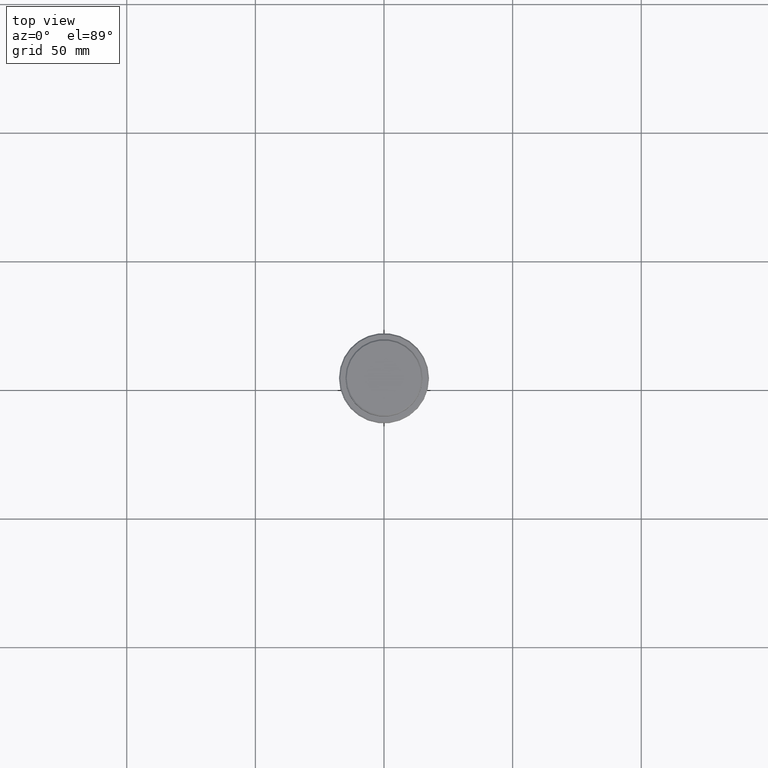
[diagram: clean part render]
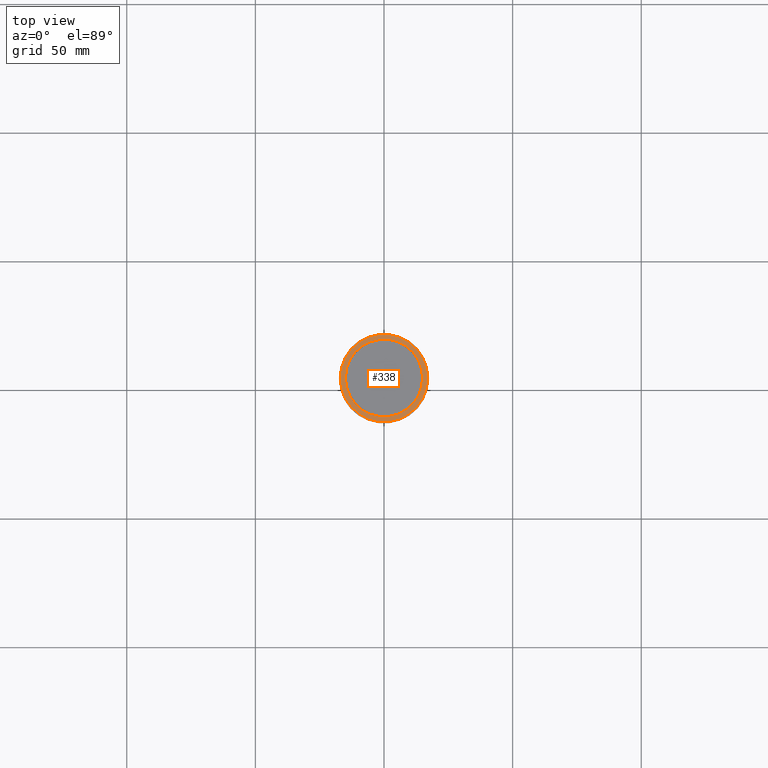
[diagram: same view with one face highlighted and labeled with its STEP entity id]
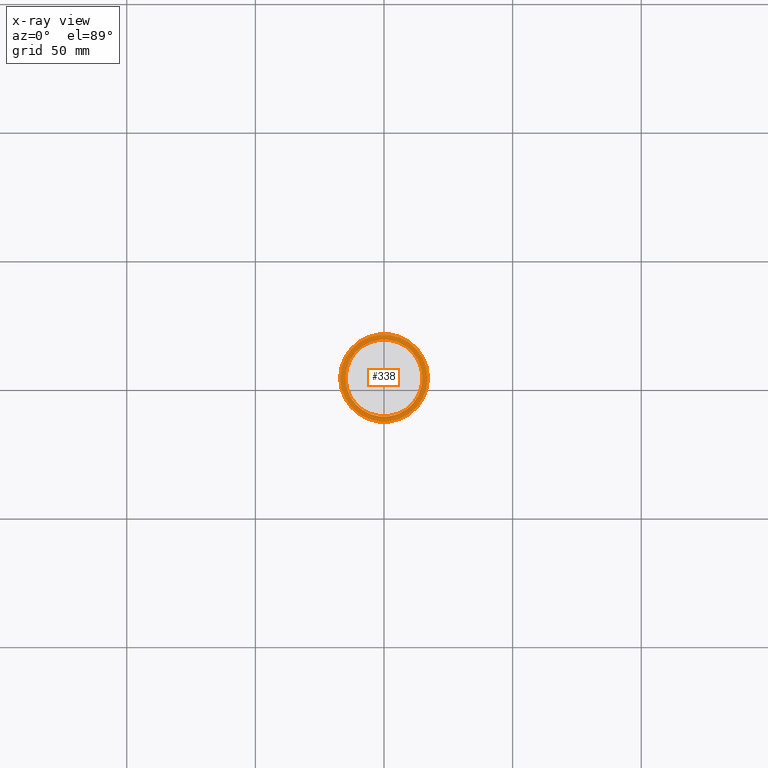
[diagram: x-ray of the same camera — body ghosted, the highlighted face saturated]
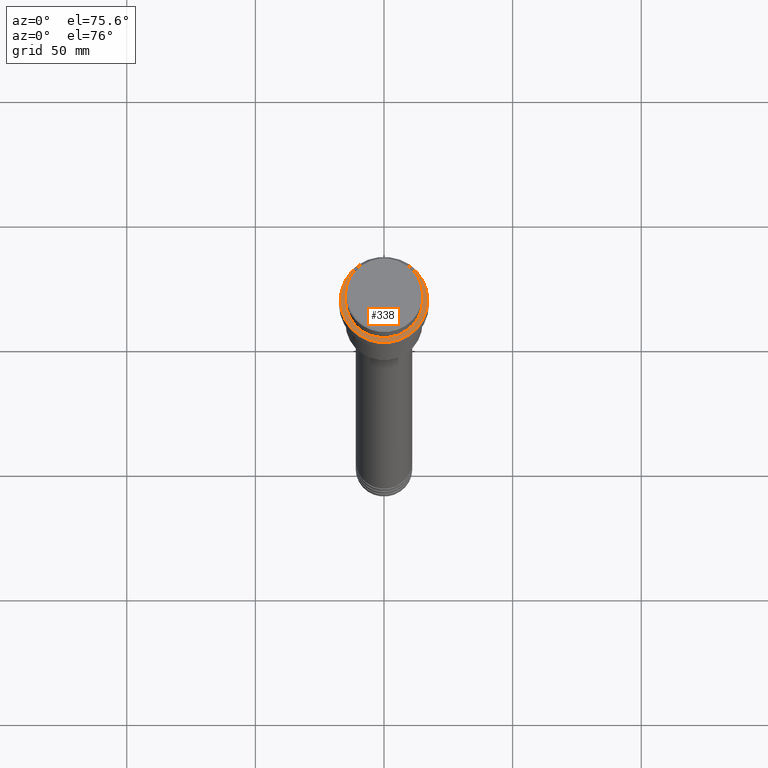
[diagram: same view with one face highlighted and labeled with its STEP entity id]
A machine part, top view. The second image highlights one B-rep face of the part: STEP entity #338.
The next image is the same camera in x-ray: the body ghosted, the highlighted face saturated — about 0% of this face is hidden behind the body in this view.
A second angle (auxiliary view) of the same face is appended — the face is thin or edge-on in the first view.
In plain terms, the highlighted planar face has unit normal (0, -0, 1).
Its self-contained STEP definition (entity closure, byte-faithful):
#12 = CARTESIAN_POINT ( 'NONE',  ( 0.000000000000000000, 0.000000000000000000, -9.000000000000001776 ) ) ;
#22 = DIRECTION ( 'NONE',  ( -0.000000000000000000, -0.000000000000000000, 1.000000000000000000 ) ) ;
#31 = CARTESIAN_POINT ( 'NONE',  ( 0.000000000000000000, 0.000000000000000000, -9.000000000000001776 ) ) ;
#34 = CIRCLE ( 'NONE', #1344, 14.99999999999999467 ) ;
#37 = CIRCLE ( 'NONE', #689, 17.00000000000001421 ) ;
#92 = ORIENTED_EDGE ( 'NONE', *, *, #251, .T. ) ;
#144 = ORIENTED_EDGE ( 'NONE', *, *, #1324, .T. ) ;
#167 = CARTESIAN_POINT ( 'NONE',  ( -17.00000000000001421, 0.000000000000000000, -9.000000000000001776 ) ) ;
#219 = VERTEX_POINT ( 'NONE', #1305 ) ;
#235 = FACE_OUTER_BOUND ( 'NONE', #775, .T. ) ;
#243 = CARTESIAN_POINT ( 'NONE',  ( 14.99999999999999467, 0.000000000000000000, -9.000000000000001776 ) ) ;
#251 = EDGE_CURVE ( 'NONE', #1217, #1165, #34, .T. ) ;
#305 = EDGE_CURVE ( 'NONE', #954, #219, #1248, .T. ) ;
#337 = CIRCLE ( 'NONE', #867, 14.99999999999999467 ) ;
#338 = ADVANCED_FACE ( 'NONE', ( #235, #676 ), #901, .T. ) ;
#345 = DIRECTION ( 'NONE',  ( 0.000000000000000000, -0.000000000000000000, 1.000000000000000000 ) ) ;
#352 = DIRECTION ( 'NONE',  ( 1.000000000000000000, 0.000000000000000000, 0.000000000000000000 ) ) ;
#381 = DIRECTION ( 'NONE',  ( 1.000000000000000000, 0.000000000000000000, 0.000000000000000000 ) ) ;
#410 = DIRECTION ( 'NONE',  ( 0.000000000000000000, 0.000000000000000000, -1.000000000000000000 ) ) ;
#676 = FACE_BOUND ( 'NONE', #940, .T. ) ;
#689 = AXIS2_PLACEMENT_3D ( 'NONE', #895, #22, #352 ) ;
#764 = AXIS2_PLACEMENT_3D ( 'NONE', #1010, #345, #1111 ) ;
#775 = EDGE_LOOP ( 'NONE', ( #1139, #1173 ) ) ;
#858 = CARTESIAN_POINT ( 'NONE',  ( 0.000000000000000000, 0.000000000000000000, -9.000000000000001776 ) ) ;
#867 = AXIS2_PLACEMENT_3D ( 'NONE', #12, #939, #381 ) ;
#888 = DIRECTION ( 'NONE',  ( -0.000000000000000000, -0.000000000000000000, 1.000000000000000000 ) ) ;
#895 = CARTESIAN_POINT ( 'NONE',  ( 0.000000000000000000, 0.000000000000000000, -9.000000000000001776 ) ) ;
#901 = PLANE ( 'NONE',  #764 ) ;
#939 = DIRECTION ( 'NONE',  ( 0.000000000000000000, 0.000000000000000000, -1.000000000000000000 ) ) ;
#940 = EDGE_LOOP ( 'NONE', ( #144, #92 ) ) ;
#954 = VERTEX_POINT ( 'NONE', #167 ) ;
#997 = AXIS2_PLACEMENT_3D ( 'NONE', #31, #888, #1342 ) ;
#1010 = CARTESIAN_POINT ( 'NONE',  ( 0.000000000000000000, 14.49999999999999467, -9.000000000000001776 ) ) ;
#1111 = DIRECTION ( 'NONE',  ( 1.000000000000000000, 0.000000000000000000, 0.000000000000000000 ) ) ;
#1127 = CARTESIAN_POINT ( 'NONE',  ( -14.99999999999999467, 1.836970198721029194E-15, -9.000000000000001776 ) ) ;
#1139 = ORIENTED_EDGE ( 'NONE', *, *, #305, .T. ) ;
#1165 = VERTEX_POINT ( 'NONE', #243 ) ;
#1173 = ORIENTED_EDGE ( 'NONE', *, *, #1266, .T. ) ;
#1217 = VERTEX_POINT ( 'NONE', #1127 ) ;
#1248 = CIRCLE ( 'NONE', #997, 17.00000000000001421 ) ;
#1266 = EDGE_CURVE ( 'NONE', #219, #954, #37, .T. ) ;
#1283 = DIRECTION ( 'NONE',  ( 1.000000000000000000, 0.000000000000000000, 0.000000000000000000 ) ) ;
#1305 = CARTESIAN_POINT ( 'NONE',  ( 17.00000000000001421, 2.112515728529185250E-15, -9.000000000000001776 ) ) ;
#1324 = EDGE_CURVE ( 'NONE', #1165, #1217, #337, .T. ) ;
#1342 = DIRECTION ( 'NONE',  ( 1.000000000000000000, 0.000000000000000000, 0.000000000000000000 ) ) ;
#1344 = AXIS2_PLACEMENT_3D ( 'NONE', #858, #410, #1283 ) ;